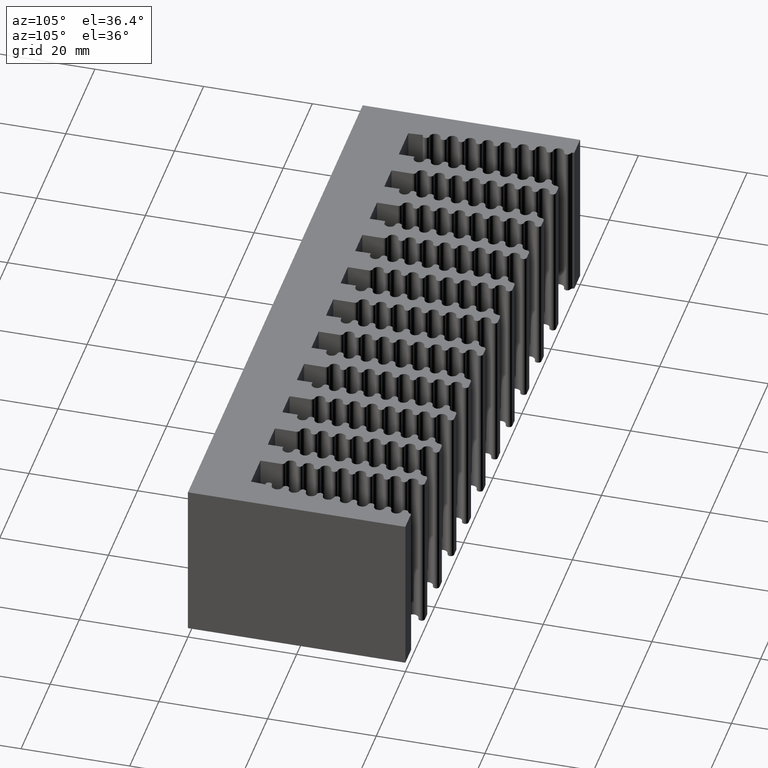
[diagram: clean part render]
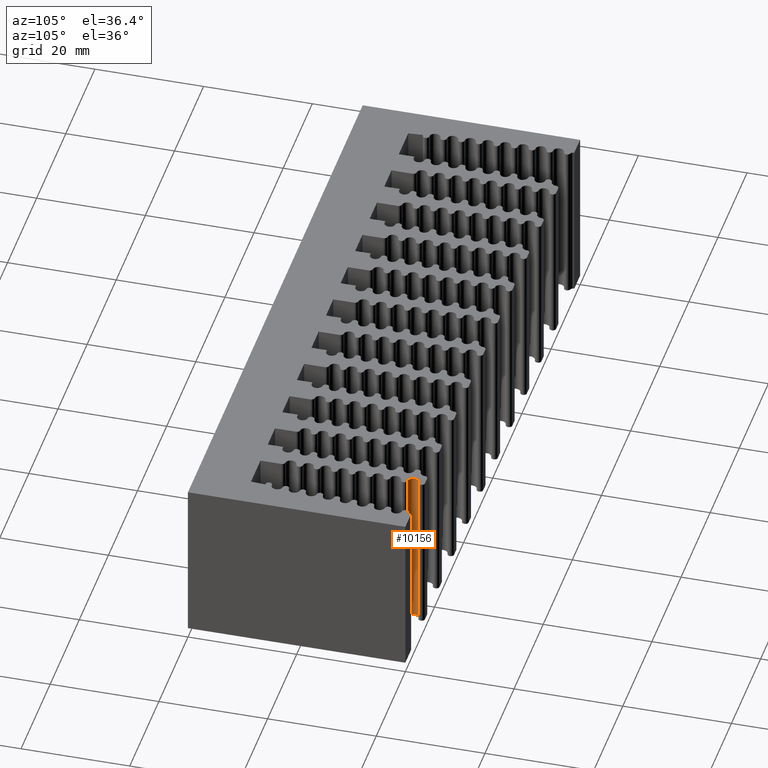
[diagram: same view with one face highlighted and labeled with its STEP entity id]
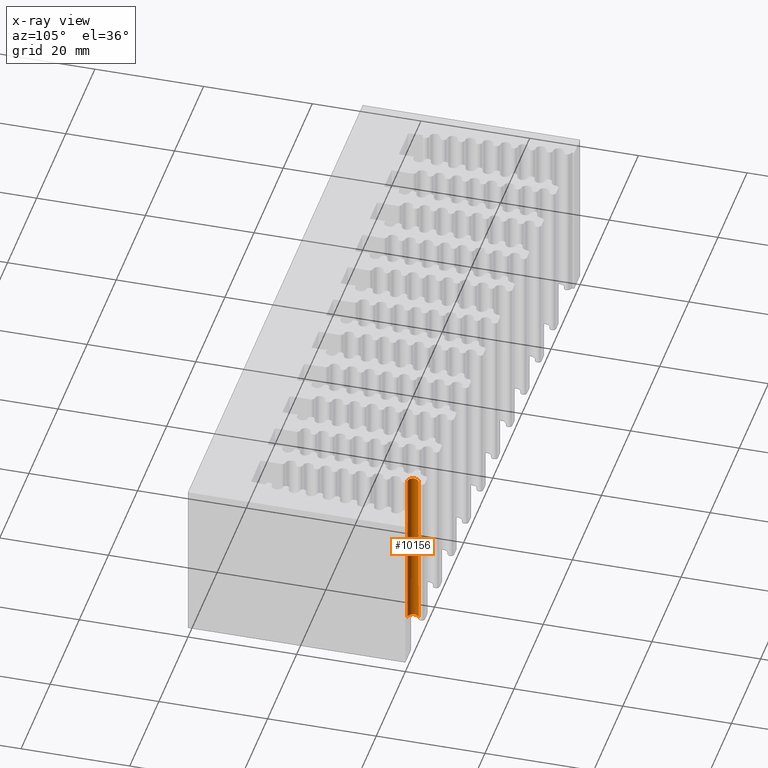
[diagram: x-ray of the same camera — body ghosted, the highlighted face saturated]
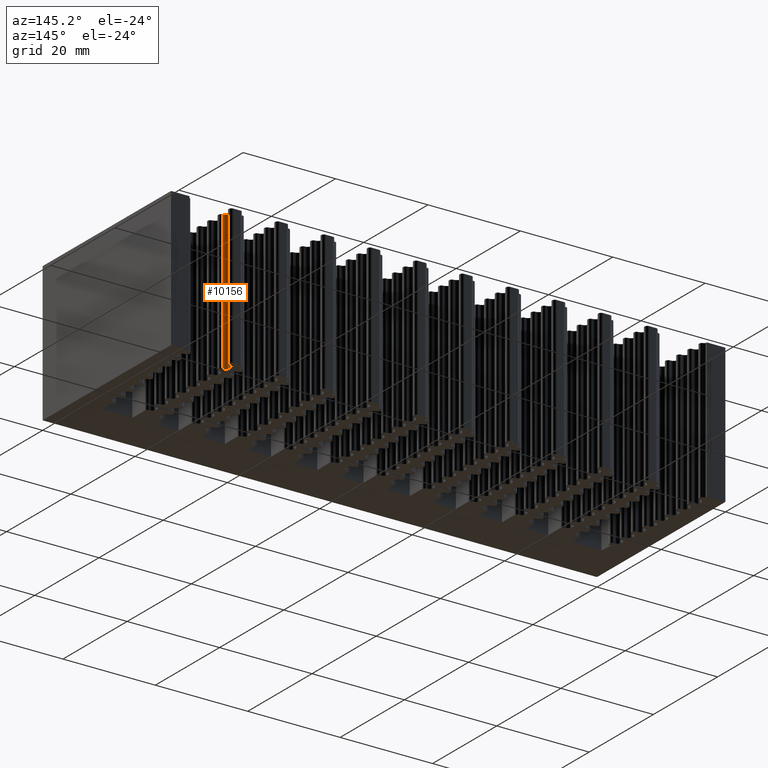
[diagram: same view with one face highlighted and labeled with its STEP entity id]
A machine part, auxiliary view. The second image highlights one B-rep face of the part: STEP entity #10156.
The next image is the same camera in x-ray: the body ghosted, the highlighted face saturated — about 0% of this face is hidden behind the body in this view.
A second angle (auxiliary view) of the same face is appended — the face is thin or edge-on in the first view.
In plain terms, the highlighted cylindrical surface (edge-blend (fillet) strip) has radius 1 mm, axis along (0, 0, 1).
Its self-contained STEP definition (entity closure, byte-faithful):
#131 = AXIS2_PLACEMENT_3D ( 'NONE', #3101, #3202, #10984 ) ;
#205 = DIRECTION ( 'NONE',  ( 0.0000000000000000000, 0.0000000000000000000, 1.000000000000000000 ) ) ;
#316 = CIRCLE ( 'NONE', #21461, 0.9999999999998621103 ) ;
#1748 = DIRECTION ( 'NONE',  ( 1.000000000000000000, 0.0000000000000000000, 0.0000000000000000000 ) ) ;
#2456 = VERTEX_POINT ( 'NONE', #17973 ) ;
#3048 = CARTESIAN_POINT ( 'NONE',  ( 106.5584124671982664, 38.80192555660395470, 0.0000000000000000000 ) ) ;
#3101 = CARTESIAN_POINT ( 'NONE',  ( 106.6384638423111397, 37.80513481761092720, 0.0000000000000000000 ) ) ;
#3202 = DIRECTION ( 'NONE',  ( -0.0000000000000000000, -0.0000000000000000000, -1.000000000000000000 ) ) ;
#5600 = EDGE_CURVE ( 'NONE', #16089, #18829, #20563, .T. ) ;
#6251 = CARTESIAN_POINT ( 'NONE',  ( 106.5932487274416616, 36.80615754390193217, 0.0000000000000000000 ) ) ;
#6793 = DIRECTION ( 'NONE',  ( 1.000000000000000000, 0.0000000000000000000, 0.0000000000000000000 ) ) ;
#7140 = LINE ( 'NONE', #12244, #10428 ) ;
#7606 = ORIENTED_EDGE ( 'NONE', *, *, #5600, .F. ) ;
#8580 = DIRECTION ( 'NONE',  ( 0.0000000000000000000, 0.0000000000000000000, 1.000000000000000000 ) ) ;
#9014 = LINE ( 'NONE', #15328, #17390 ) ;
#9581 = EDGE_CURVE ( 'NONE', #19843, #2456, #316, .T. ) ;
#10156 = ADVANCED_FACE ( 'NONE', ( #15831 ), #10951, .F. ) ;
#10428 = VECTOR ( 'NONE', #18966, 1000.000000000000000 ) ;
#10951 = CYLINDRICAL_SURFACE ( 'NONE', #15858, 0.9999999999998621103 ) ;
#10984 = DIRECTION ( 'NONE',  ( 1.000000000000000000, 0.0000000000000000000, 0.0000000000000000000 ) ) ;
#12244 = CARTESIAN_POINT ( 'NONE',  ( 106.5584124671982664, 38.80192555660395470, -30.00000000000000000 ) ) ;
#13537 = EDGE_CURVE ( 'NONE', #2456, #18829, #7140, .T. ) ;
#14714 = ORIENTED_EDGE ( 'NONE', *, *, #9581, .T. ) ;
#15328 = CARTESIAN_POINT ( 'NONE',  ( 106.5932487274416616, 36.80615754390193217, -30.00000000000000000 ) ) ;
#15612 = CARTESIAN_POINT ( 'NONE',  ( 106.6384638423111397, 37.80513481761092720, -30.00000000000000000 ) ) ;
#15831 = FACE_OUTER_BOUND ( 'NONE', #21081, .T. ) ;
#15858 = AXIS2_PLACEMENT_3D ( 'NONE', #15612, #8580, #6793 ) ;
#16089 = VERTEX_POINT ( 'NONE', #6251 ) ;
#16457 = DIRECTION ( 'NONE',  ( -0.0000000000000000000, -0.0000000000000000000, -1.000000000000000000 ) ) ;
#16491 = ORIENTED_EDGE ( 'NONE', *, *, #13537, .T. ) ;
#17390 = VECTOR ( 'NONE', #205, 1000.000000000000000 ) ;
#17973 = CARTESIAN_POINT ( 'NONE',  ( 106.5584124671982664, 38.80192555660395470, -30.00000000000000000 ) ) ;
#18208 = CARTESIAN_POINT ( 'NONE',  ( 106.6384638423111397, 37.80513481761092720, -30.00000000000000000 ) ) ;
#18829 = VERTEX_POINT ( 'NONE', #3048 ) ;
#18940 = EDGE_CURVE ( 'NONE', #19843, #16089, #9014, .T. ) ;
#18966 = DIRECTION ( 'NONE',  ( 0.0000000000000000000, 0.0000000000000000000, 1.000000000000000000 ) ) ;
#19843 = VERTEX_POINT ( 'NONE', #20231 ) ;
#20231 = CARTESIAN_POINT ( 'NONE',  ( 106.5932487274416616, 36.80615754390193217, -30.00000000000000000 ) ) ;
#20366 = ORIENTED_EDGE ( 'NONE', *, *, #18940, .F. ) ;
#20563 = CIRCLE ( 'NONE', #131, 0.9999999999998621103 ) ;
#21081 = EDGE_LOOP ( 'NONE', ( #7606, #20366, #14714, #16491 ) ) ;
#21461 = AXIS2_PLACEMENT_3D ( 'NONE', #18208, #16457, #1748 ) ;